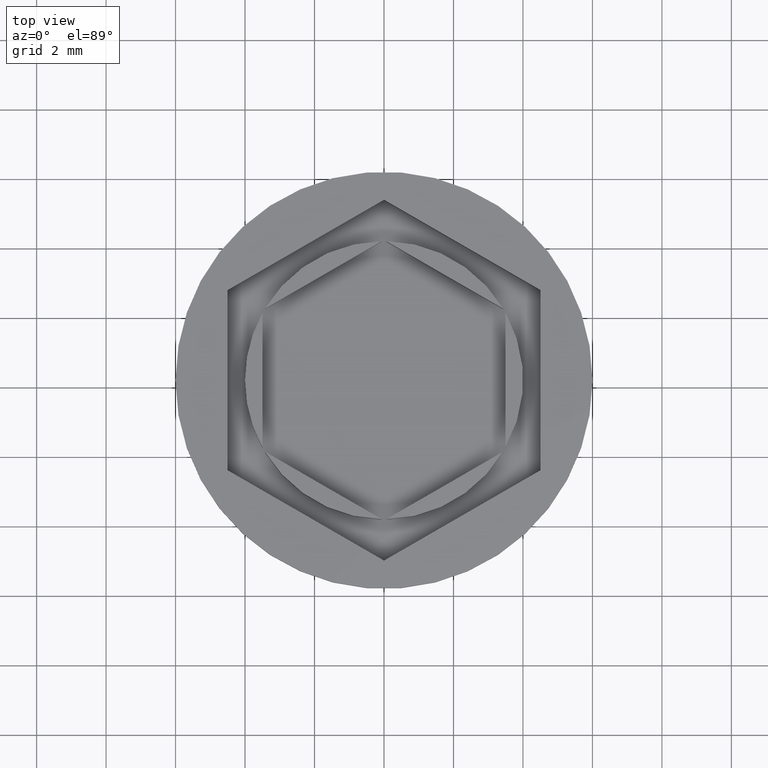
[diagram: clean part render]
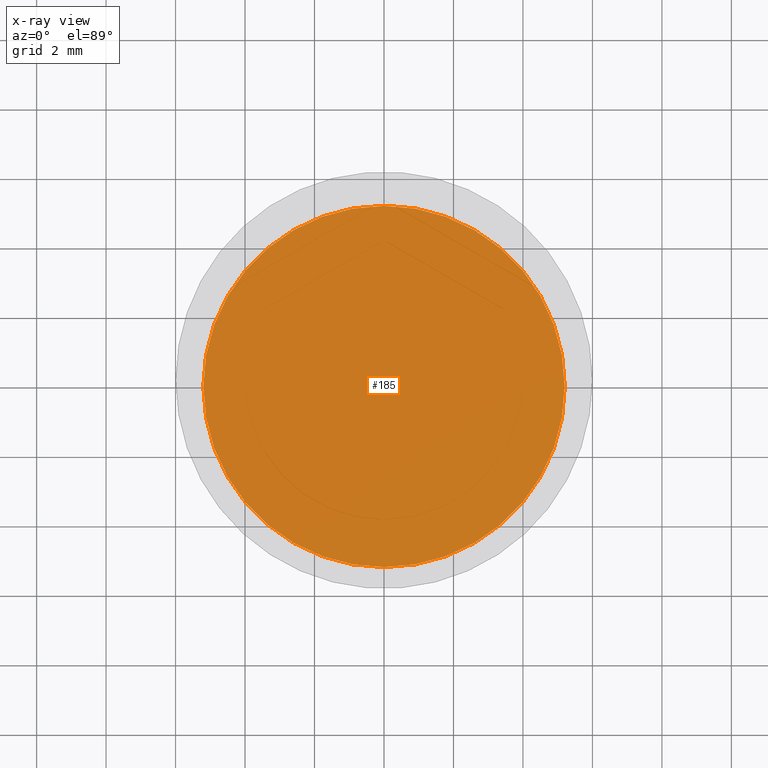
[diagram: x-ray — body ghosted, one internal face saturated and labeled with its STEP entity id]
A machine part, top view, then the same camera in x-ray: the body is ghosted and one INTERNAL B-rep face — a face not visible from any outside direction — is saturated and labeled: STEP entity #185.
In plain terms, the highlighted planar face has unit normal (0, 0, -1).
Its self-contained STEP definition (entity closure, byte-faithful):
#185 = ADVANCED_FACE ( 'NONE', ( #691 ), #1617, .F. ) ;
#328 = EDGE_LOOP ( 'NONE', ( #1348, #1639 ) ) ;
#340 = CARTESIAN_POINT ( 'NONE',  ( 0.000000000000000000, 0.000000000000000000, -10.50000000000000178 ) ) ;
#463 = DIRECTION ( 'NONE',  ( -0.000000000000000000, -0.000000000000000000, 1.000000000000000000 ) ) ;
#494 = DIRECTION ( 'NONE',  ( -0.000000000000000000, -0.000000000000000000, 1.000000000000000000 ) ) ;
#557 = DIRECTION ( 'NONE',  ( -1.000000000000000000, 0.000000000000000000, -0.000000000000000000 ) ) ;
#629 = VERTEX_POINT ( 'NONE', #750 ) ;
#649 = DIRECTION ( 'NONE',  ( -1.000000000000000000, 0.000000000000000000, 0.000000000000000000 ) ) ;
#662 = VERTEX_POINT ( 'NONE', #1356 ) ;
#691 = FACE_OUTER_BOUND ( 'NONE', #328, .T. ) ;
#750 = CARTESIAN_POINT ( 'NONE',  ( 5.200000000000001066, 6.551860375438340681E-16, -10.50000000000000178 ) ) ;
#854 = CIRCLE ( 'NONE', #1393, 5.200000000000001066 ) ;
#1223 = DIRECTION ( 'NONE',  ( -1.000000000000000000, 0.000000000000000000, 0.000000000000000000 ) ) ;
#1268 = AXIS2_PLACEMENT_3D ( 'NONE', #1937, #1466, #557 ) ;
#1348 = ORIENTED_EDGE ( 'NONE', *, *, #1714, .T. ) ;
#1356 = CARTESIAN_POINT ( 'NONE',  ( -5.200000000000001066, 0.000000000000000000, -10.50000000000000178 ) ) ;
#1393 = AXIS2_PLACEMENT_3D ( 'NONE', #340, #494, #649 ) ;
#1466 = DIRECTION ( 'NONE',  ( 0.000000000000000000, 0.000000000000000000, -1.000000000000000000 ) ) ;
#1606 = EDGE_CURVE ( 'NONE', #629, #662, #1954, .T. ) ;
#1617 = PLANE ( 'NONE',  #1268 ) ;
#1639 = ORIENTED_EDGE ( 'NONE', *, *, #1606, .T. ) ;
#1667 = CARTESIAN_POINT ( 'NONE',  ( 0.000000000000000000, 0.000000000000000000, -10.50000000000000178 ) ) ;
#1714 = EDGE_CURVE ( 'NONE', #662, #629, #854, .T. ) ;
#1896 = AXIS2_PLACEMENT_3D ( 'NONE', #1667, #463, #1223 ) ;
#1937 = CARTESIAN_POINT ( 'NONE',  ( 0.000000000000000000, 0.000000000000000000, -10.50000000000000178 ) ) ;
#1954 = CIRCLE ( 'NONE', #1896, 5.200000000000001066 ) ;